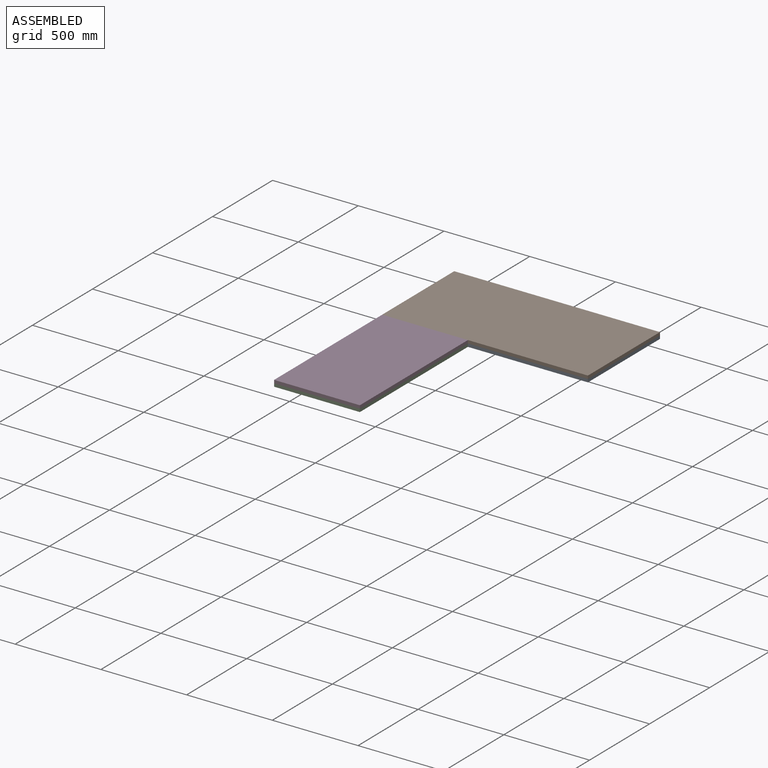
[diagram: assembled view]
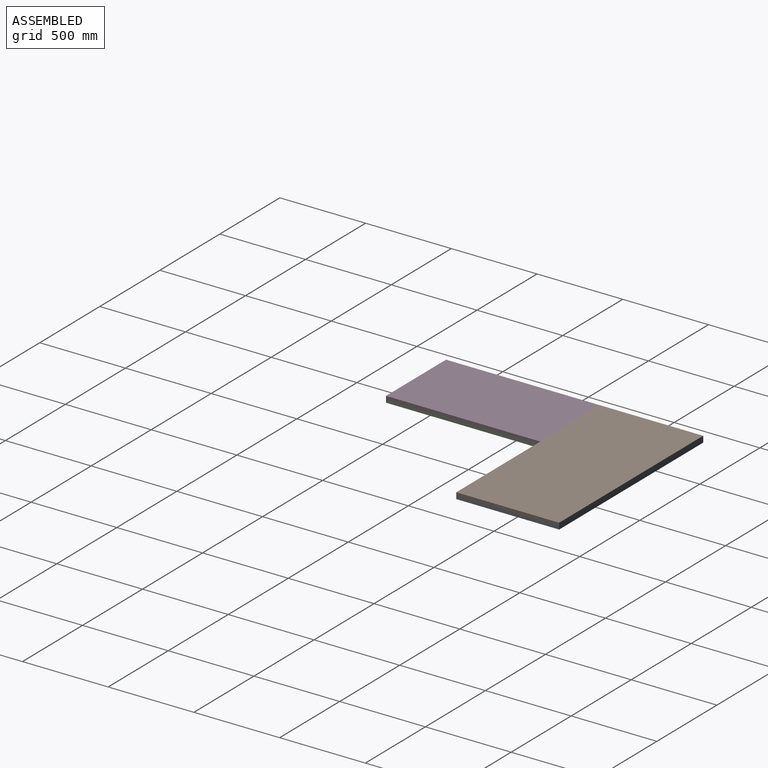
[diagram: assembled view, second angle]
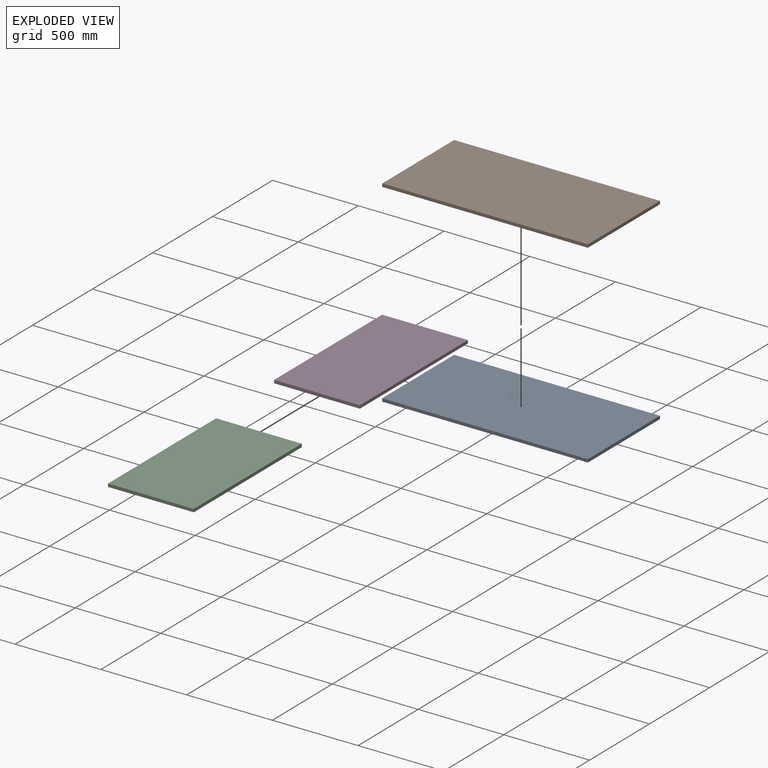
[diagram: exploded view]
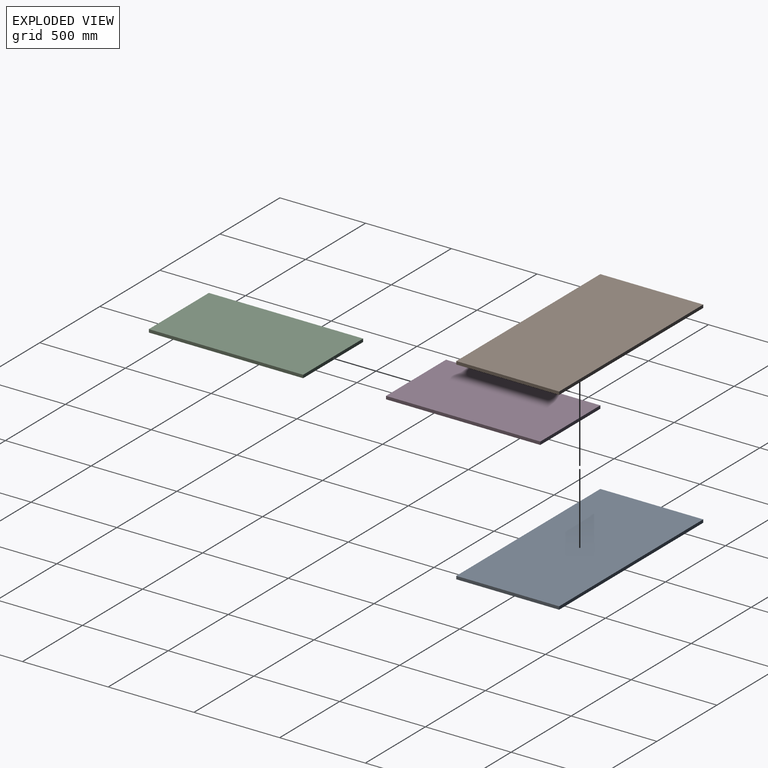
[diagram: exploded view, second angle]
ASSEMBLY  parts=4 mates=3
PART A: 6 faces, bbox 1200x600x18 mm
  f0: plane 1200x18mm, normal (0,1,0), area 21600mm2, adj f1,f3,f4,f5
  f1: plane 600x18mm, normal (-1,0,0), area 10800mm2, adj f0,f2,f4,f5
  f2: plane 1200x18mm, normal (0,-1,0), area 21600mm2, adj f1,f3,f4,f5
  f3: plane 600x18mm, normal (1,0,0), area 10800mm2, adj f0,f2,f4,f5
  f4: plane 1200x600mm, normal (0,0,1), area 720000mm2, adj f0,f1,f2,f3
  f5: plane 1200x600mm, normal (0,0,-1), area 720000mm2, adj f0,f1,f2,f3
PART B: 6 faces, bbox 1200x600x18 mm
  f0: plane 600x18mm, normal (1,0,0), area 10800mm2, adj f1,f3,f4,f5
  f1: plane 1200x18mm, normal (0,1,0), area 21600mm2, adj f0,f2,f4,f5
  f2: plane 600x18mm, normal (-1,0,0), area 10800mm2, adj f1,f3,f4,f5
  f3: plane 1200x18mm, normal (0,-1,0), area 21600mm2, adj f0,f2,f4,f5
  f4: plane 1200x600mm, normal (0,0,1), area 720000mm2, adj f0,f1,f2,f3
  f5: plane 1200x600mm, normal (0,0,-1), area 720000mm2, adj f0,f1,f2,f3
PART C: 6 faces, bbox 900x500x18 mm
  f0: plane 900x18mm, normal (0,1,0), area 16200mm2, adj f1,f3,f4,f5
  f1: plane 500x18mm, normal (-1,0,0), area 9000mm2, adj f0,f2,f4,f5
  f2: plane 900x18mm, normal (0,-1,0), area 16200mm2, adj f1,f3,f4,f5
  f3: plane 500x18mm, normal (1,0,0), area 9000mm2, adj f0,f2,f4,f5
  f4: plane 900x500mm, normal (0,0,1), area 450000mm2, adj f0,f1,f2,f3
  f5: plane 900x500mm, normal (0,0,-1), area 450000mm2, adj f0,f1,f2,f3
PART D: 6 faces, bbox 900x500x18 mm
  f0: plane 500x18mm, normal (1,0,0), area 9000mm2, adj f1,f3,f4,f5
  f1: plane 900x18mm, normal (0,1,0), area 16200mm2, adj f0,f2,f4,f5
  f2: plane 500x18mm, normal (-1,0,0), area 9000mm2, adj f1,f3,f4,f5
  f3: plane 900x18mm, normal (0,-1,0), area 16200mm2, adj f0,f2,f4,f5
  f4: plane 900x500mm, normal (0,0,1), area 450000mm2, adj f0,f1,f2,f3
  f5: plane 900x500mm, normal (0,0,-1), area 450000mm2, adj f0,f1,f2,f3
PLACE A t=(620,290,0)mm
PLACE B t=(620,-310,18)mm
PLACE C rot(axis=(0,0,-1),90deg) t=(-210,-320,0)mm
PLACE D rot(axis=(0,0,-1),90deg) t=(-710,-320,18)mm
MATE fastened B.f5 <-> A.f4  axis (0,0,-1) through (0,0,18)mm
MATE fastened D.f2 <-> B.f3  axis (0,1,0) through (-600,-300,27)mm
MATE fastened C.f1 <-> A.f2  axis (0,1,0) through (-600,-300,9)mm
